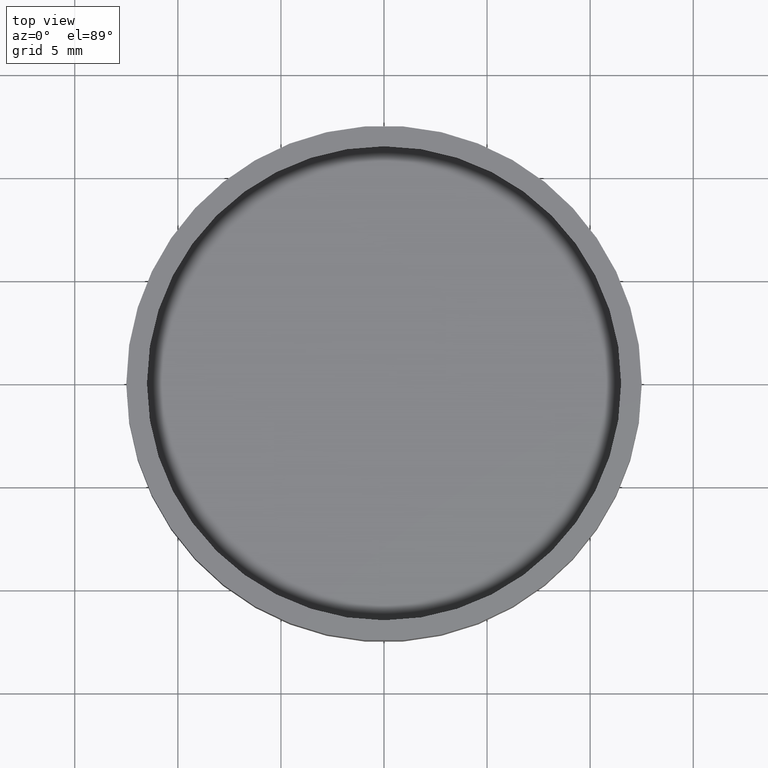
[diagram: clean part render]
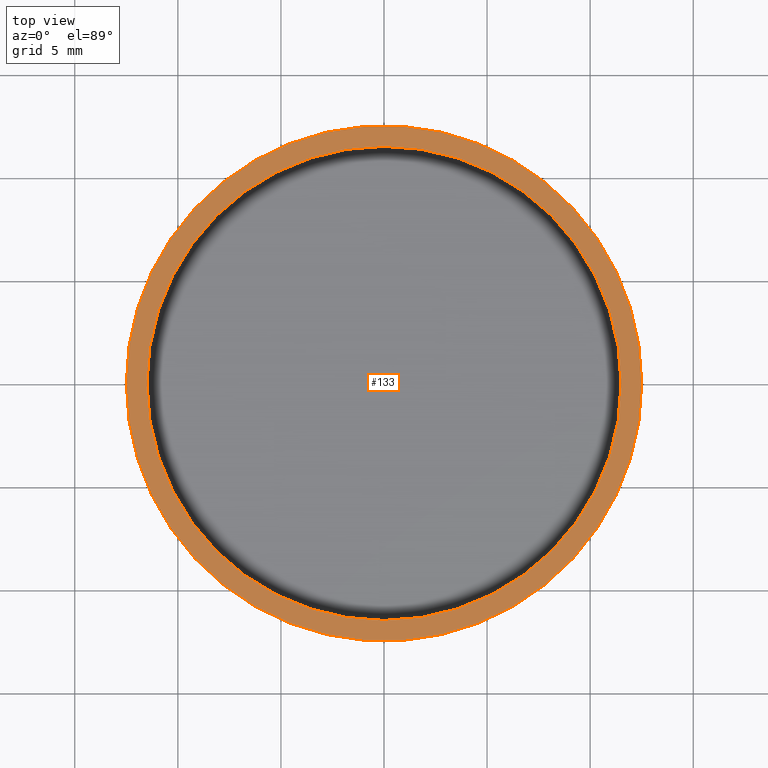
[diagram: same view with one face highlighted and labeled with its STEP entity id]
A machine part, top view. The second image highlights one B-rep face of the part: STEP entity #133.
In plain terms, the highlighted planar face has unit normal (0, 0, 1).
Its self-contained STEP definition (entity closure, byte-faithful):
#8 = CARTESIAN_POINT ( 'NONE',  ( 0.000000000000000000, 0.000000000000000000, 3.500000000000000000 ) ) ;
#11 = DIRECTION ( 'NONE',  ( 0.000000000000000000, 0.000000000000000000, 1.000000000000000000 ) ) ;
#24 = DIRECTION ( 'NONE',  ( 0.000000000000000000, 0.000000000000000000, 1.000000000000000000 ) ) ;
#32 = EDGE_CURVE ( 'NONE', #252, #227, #368, .T. ) ;
#36 = CIRCLE ( 'NONE', #383, 11.50000000000000000 ) ;
#37 = CARTESIAN_POINT ( 'NONE',  ( -12.50000000000000000, 0.000000000000000000, 3.500000000000000000 ) ) ;
#53 = DIRECTION ( 'NONE',  ( 0.000000000000000000, 0.000000000000000000, 1.000000000000000000 ) ) ;
#56 = ORIENTED_EDGE ( 'NONE', *, *, #32, .T. ) ;
#63 = AXIS2_PLACEMENT_3D ( 'NONE', #245, #11, #270 ) ;
#68 = AXIS2_PLACEMENT_3D ( 'NONE', #406, #300, #210 ) ;
#119 = VERTEX_POINT ( 'NONE', #403 ) ;
#125 = ORIENTED_EDGE ( 'NONE', *, *, #146, .F. ) ;
#133 = ADVANCED_FACE ( 'NONE', ( #243, #220 ), #251, .T. ) ;
#137 = DIRECTION ( 'NONE',  ( 0.000000000000000000, 0.000000000000000000, 1.000000000000000000 ) ) ;
#142 = CARTESIAN_POINT ( 'NONE',  ( 0.000000000000000000, 0.000000000000000000, 3.500000000000000000 ) ) ;
#146 = EDGE_CURVE ( 'NONE', #119, #343, #36, .T. ) ;
#179 = EDGE_CURVE ( 'NONE', #227, #252, #186, .T. ) ;
#186 = CIRCLE ( 'NONE', #292, 12.50000000000000000 ) ;
#207 = CARTESIAN_POINT ( 'NONE',  ( -11.50000000000000000, 1.408343819019456176E-15, 3.500000000000000000 ) ) ;
#210 = DIRECTION ( 'NONE',  ( 1.000000000000000000, 0.000000000000000000, -0.000000000000000000 ) ) ;
#220 = FACE_OUTER_BOUND ( 'NONE', #381, .T. ) ;
#227 = VERTEX_POINT ( 'NONE', #37 ) ;
#243 = FACE_BOUND ( 'NONE', #257, .T. ) ;
#245 = CARTESIAN_POINT ( 'NONE',  ( 0.000000000000000000, 0.000000000000000000, 3.500000000000000000 ) ) ;
#251 = PLANE ( 'NONE',  #68 ) ;
#252 = VERTEX_POINT ( 'NONE', #420 ) ;
#257 = EDGE_LOOP ( 'NONE', ( #125, #380 ) ) ;
#264 = CIRCLE ( 'NONE', #63, 11.50000000000000000 ) ;
#269 = DIRECTION ( 'NONE',  ( 1.000000000000000000, 0.000000000000000000, 0.000000000000000000 ) ) ;
#270 = DIRECTION ( 'NONE',  ( 1.000000000000000000, 0.000000000000000000, 0.000000000000000000 ) ) ;
#281 = CARTESIAN_POINT ( 'NONE',  ( 0.000000000000000000, 0.000000000000000000, 3.500000000000000000 ) ) ;
#292 = AXIS2_PLACEMENT_3D ( 'NONE', #281, #24, #322 ) ;
#300 = DIRECTION ( 'NONE',  ( 0.000000000000000000, 0.000000000000000000, 1.000000000000000000 ) ) ;
#322 = DIRECTION ( 'NONE',  ( 1.000000000000000000, 0.000000000000000000, 0.000000000000000000 ) ) ;
#343 = VERTEX_POINT ( 'NONE', #207 ) ;
#347 = EDGE_CURVE ( 'NONE', #343, #119, #264, .T. ) ;
#351 = DIRECTION ( 'NONE',  ( 1.000000000000000000, 0.000000000000000000, 0.000000000000000000 ) ) ;
#358 = AXIS2_PLACEMENT_3D ( 'NONE', #142, #53, #351 ) ;
#368 = CIRCLE ( 'NONE', #358, 12.50000000000000000 ) ;
#380 = ORIENTED_EDGE ( 'NONE', *, *, #347, .F. ) ;
#381 = EDGE_LOOP ( 'NONE', ( #413, #56 ) ) ;
#383 = AXIS2_PLACEMENT_3D ( 'NONE', #8, #137, #269 ) ;
#403 = CARTESIAN_POINT ( 'NONE',  ( 11.50000000000000000, 0.000000000000000000, 3.500000000000000000 ) ) ;
#406 = CARTESIAN_POINT ( 'NONE',  ( 0.000000000000000000, 0.000000000000000000, 3.500000000000000000 ) ) ;
#413 = ORIENTED_EDGE ( 'NONE', *, *, #179, .T. ) ;
#420 = CARTESIAN_POINT ( 'NONE',  ( 12.50000000000000000, 1.530808498934191521E-15, 3.500000000000000000 ) ) ;